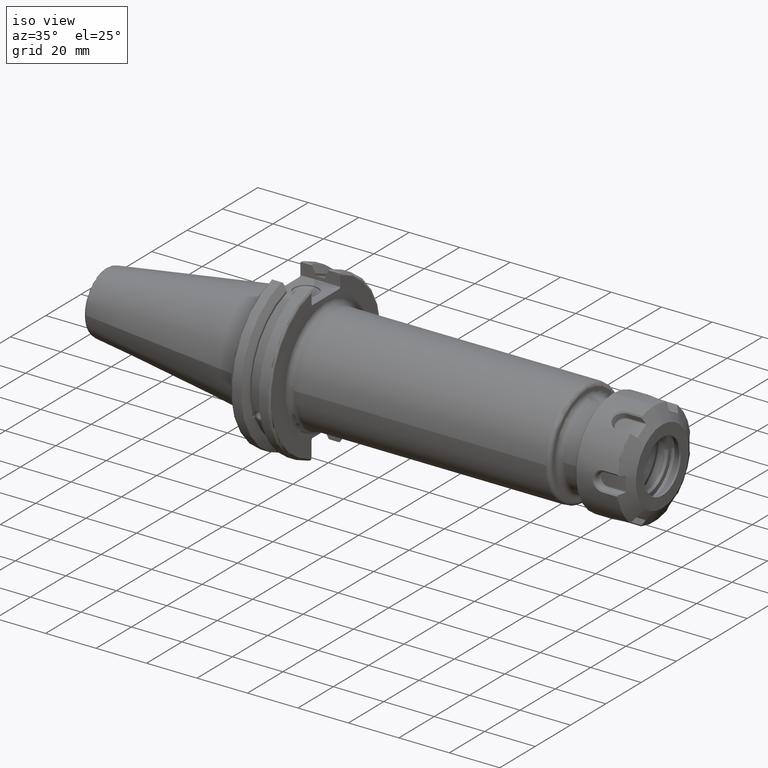
[diagram: clean part render]
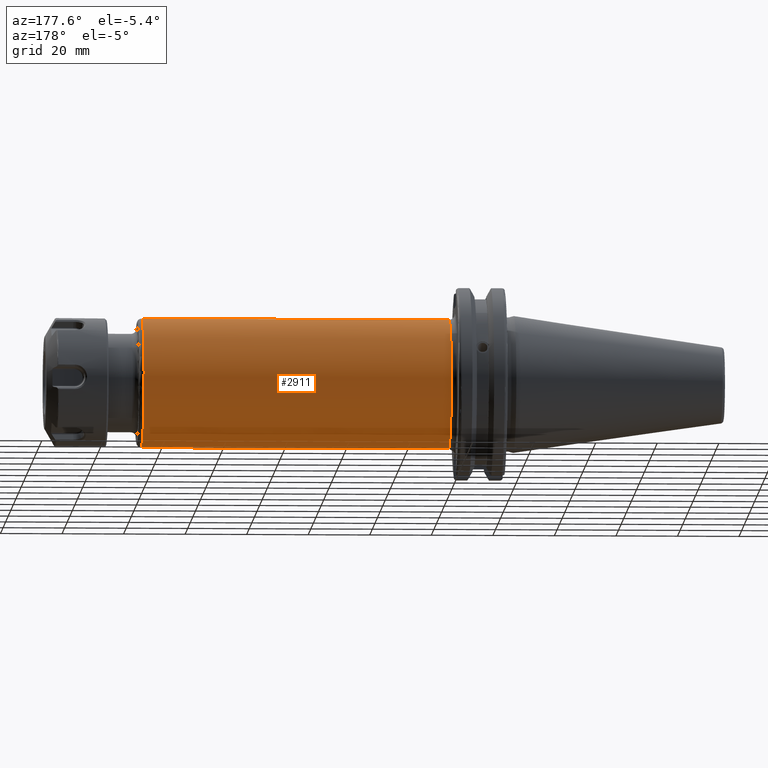
[diagram: tour spotlight — one face highlighted and labeled with its STEP entity id]
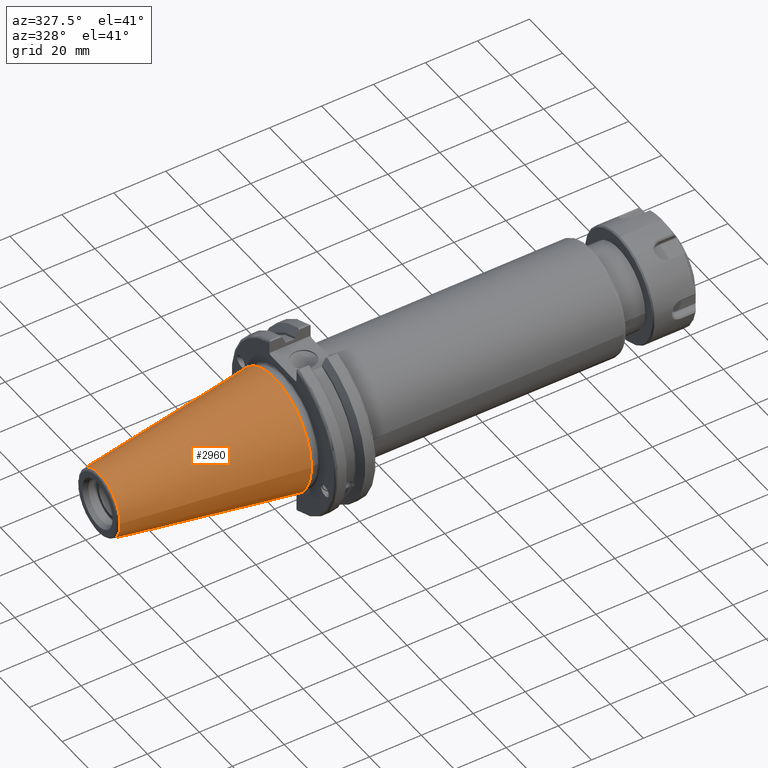
[diagram: tour spotlight — one face highlighted and labeled with its STEP entity id]
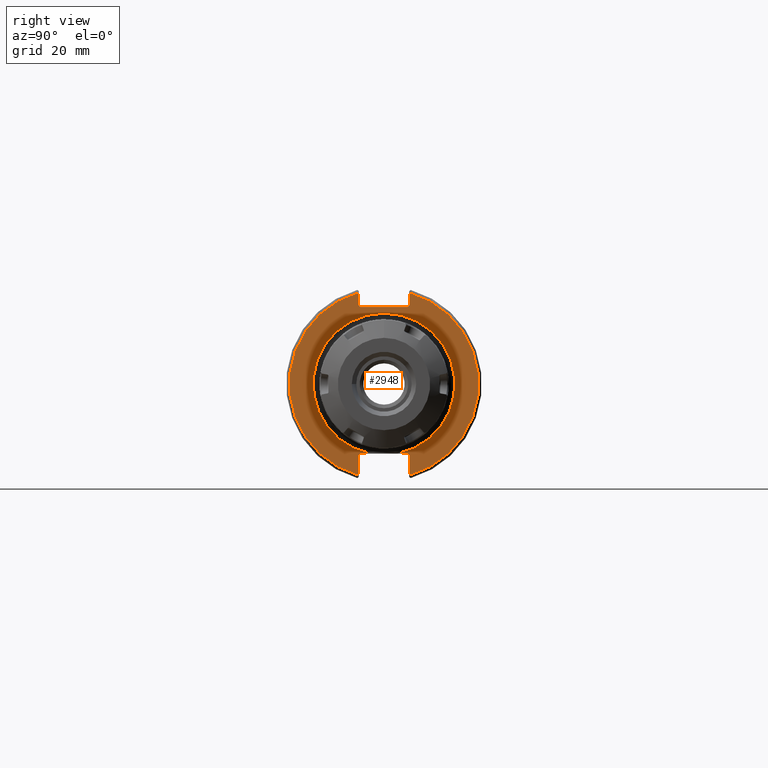
[diagram: tour spotlight — one face highlighted and labeled with its STEP entity id]
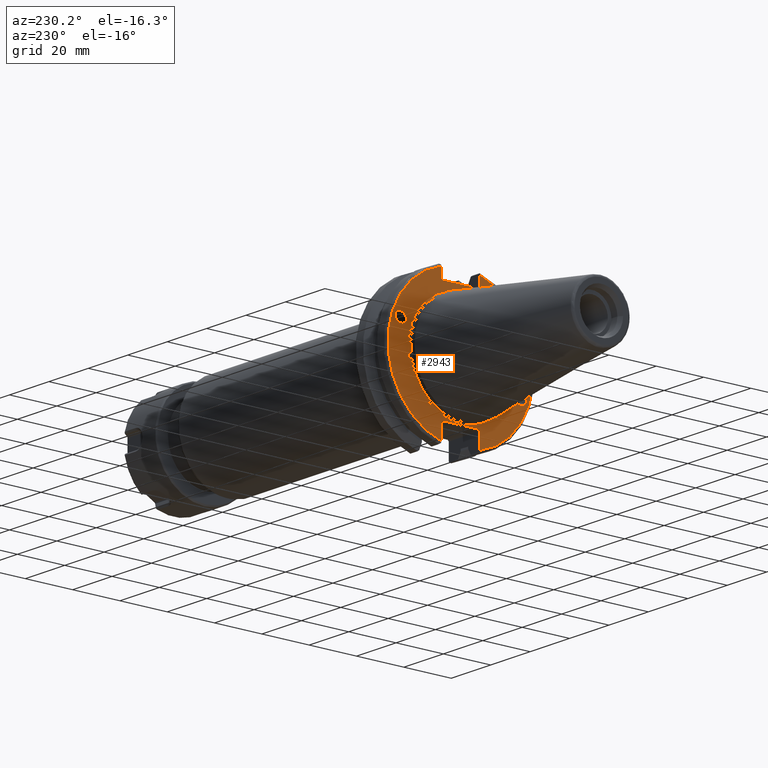
[diagram: tour spotlight — one face highlighted and labeled with its STEP entity id]
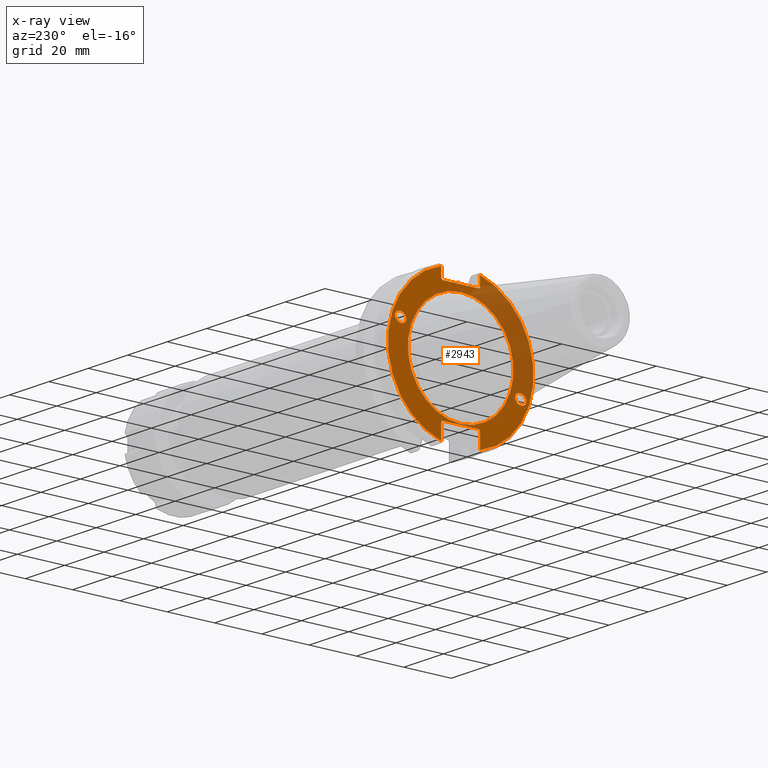
[diagram: x-ray of the same camera — body ghosted, this tour face saturated]
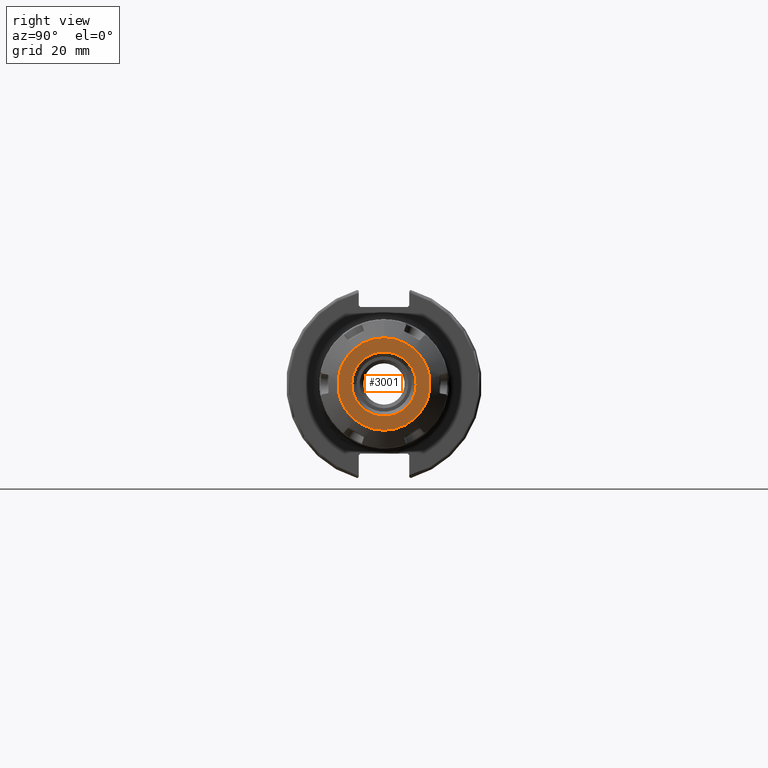
[diagram: tour spotlight — one face highlighted and labeled with its STEP entity id]
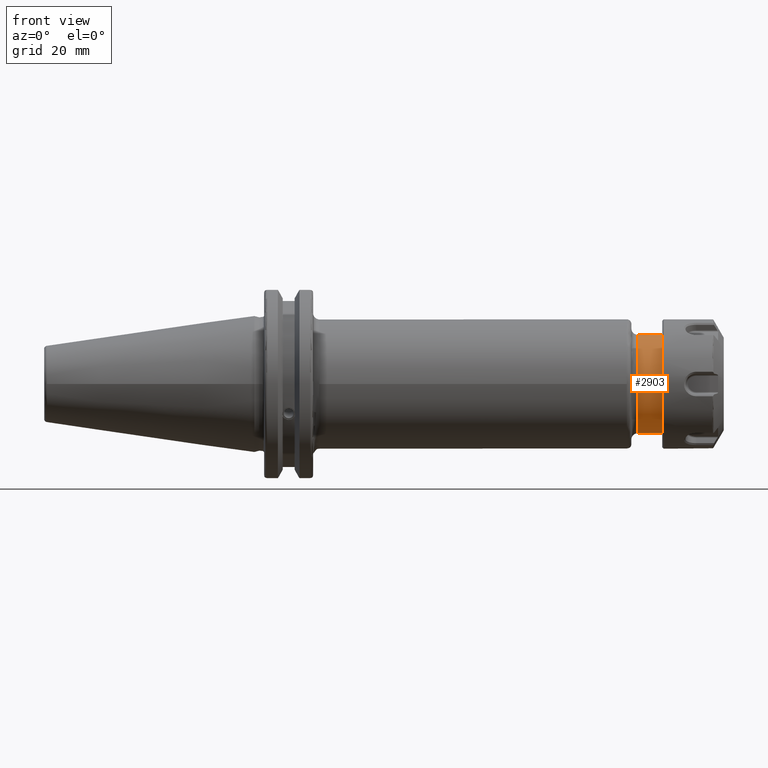
[diagram: tour spotlight — one face highlighted and labeled with its STEP entity id]
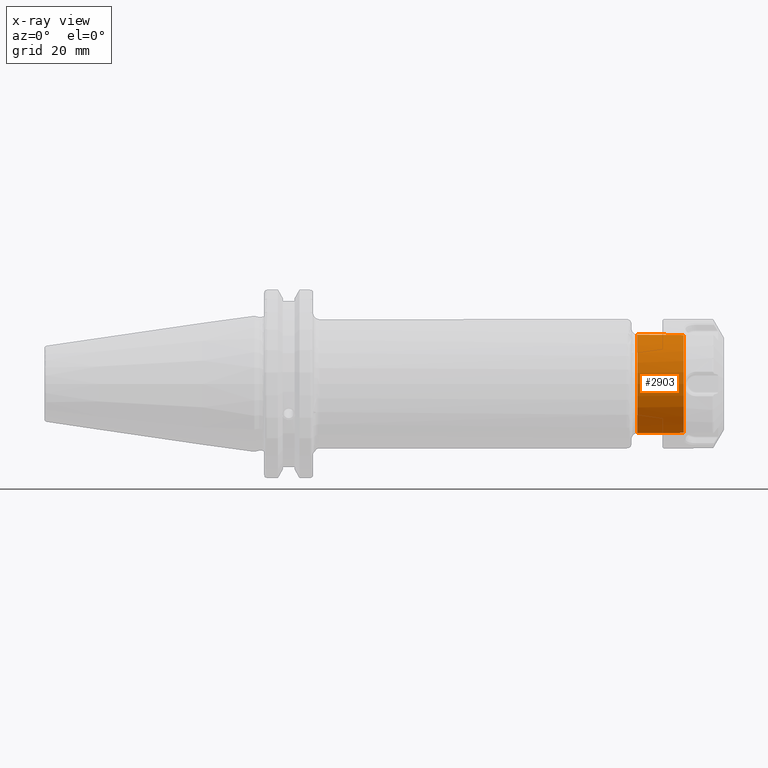
[diagram: x-ray of the same camera — body ghosted, this tour face saturated]
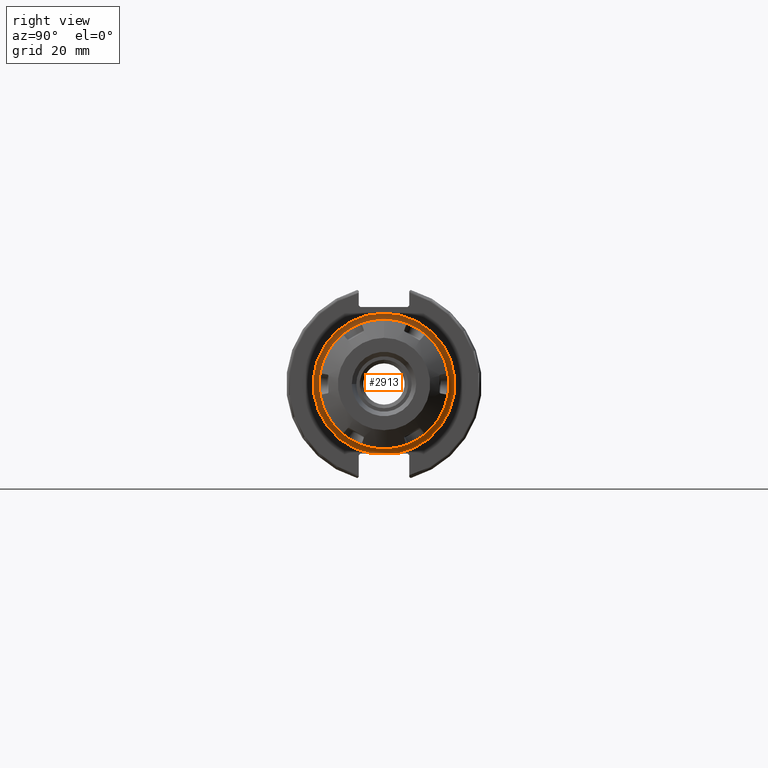
[diagram: tour spotlight — one face highlighted and labeled with its STEP entity id]
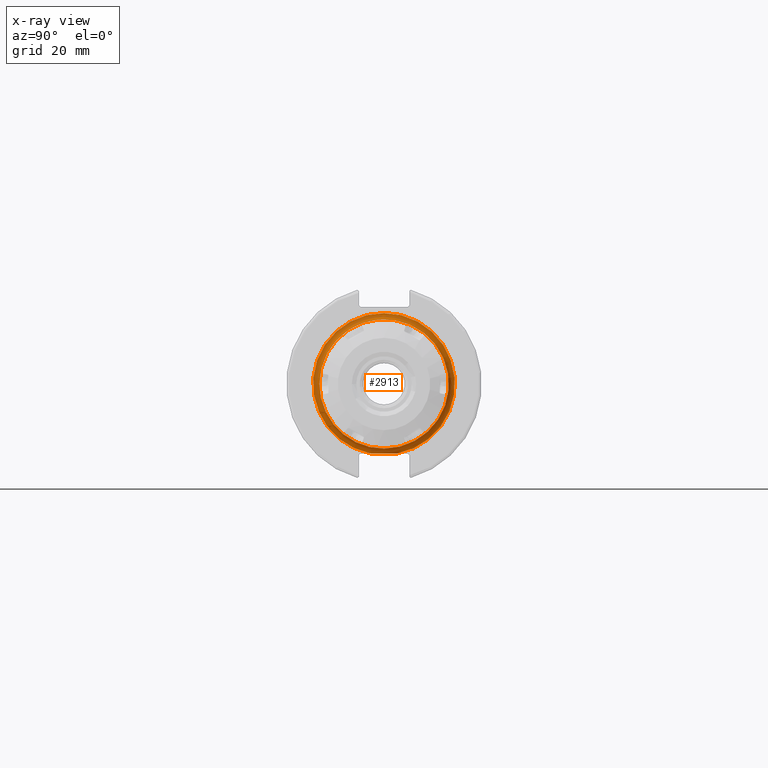
[diagram: x-ray of the same camera — body ghosted, this tour face saturated]
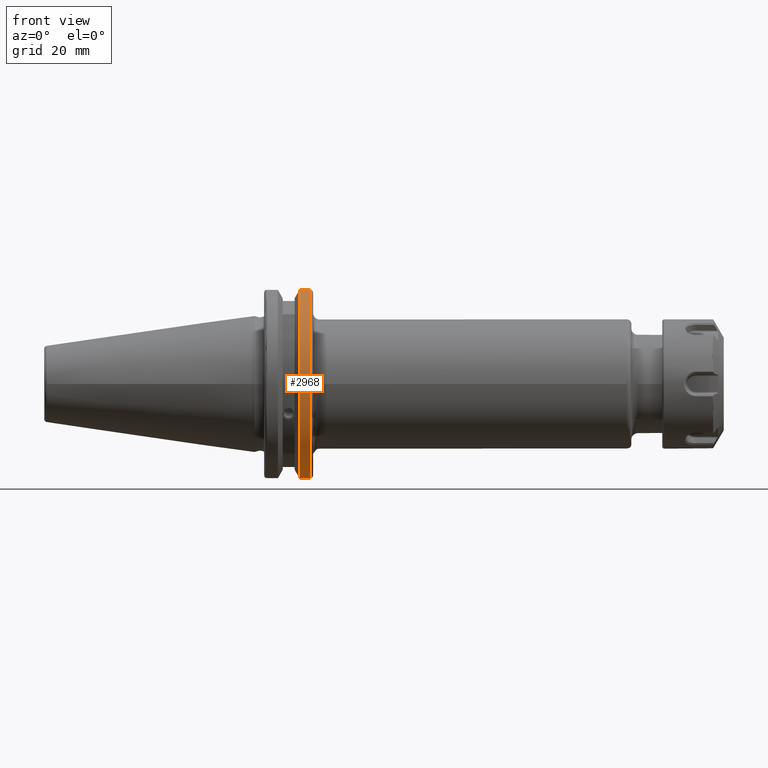
[diagram: tour spotlight — one face highlighted and labeled with its STEP entity id]
A machine part: a face-by-face anatomy tour. The part has 170 B-rep faces; the first image is the clean iso view, then the 8 largest visible faces are spotlighted one at a time (largest first), each with its STEP entity span.

Face 1 — auxiliary view, entity #2911. In plain terms, the highlighted cylindrical surface (bore or boss wall) has radius 21 mm, axis along (1, 0, 0).
Definition (entity closure, byte-faithful):
#261=CYLINDRICAL_SURFACE('',#3176,21.);
#408=FACE_OUTER_BOUND('',#582,.T.);
#582=EDGE_LOOP('',(#2043,#2044,#2045,#2046,#2047,#2048));
#765=LINE('',#4431,#952);
#952=VECTOR('',#3538,21.);
#1150=CIRCLE('',#3172,21.);
#1151=CIRCLE('',#3173,21.);
#1153=CIRCLE('',#3177,21.);
#1154=CIRCLE('',#3178,21.);
#1287=VERTEX_POINT('',#4421);
#1288=VERTEX_POINT('',#4423);
#1290=VERTEX_POINT('',#4430);
#1291=VERTEX_POINT('',#4432);
#1580=EDGE_CURVE('',#1287,#1288,#1150,.T.);
#1581=EDGE_CURVE('',#1288,#1287,#1151,.T.);
#1583=EDGE_CURVE('',#1288,#1290,#765,.T.);
#1584=EDGE_CURVE('',#1291,#1290,#1153,.T.);
#1585=EDGE_CURVE('',#1290,#1291,#1154,.T.);
#2043=ORIENTED_EDGE('',*,*,#1581,.F.);
#2044=ORIENTED_EDGE('',*,*,#1583,.T.);
#2045=ORIENTED_EDGE('',*,*,#1584,.F.);
#2046=ORIENTED_EDGE('',*,*,#1585,.F.);
#2047=ORIENTED_EDGE('',*,*,#1583,.F.);
#2048=ORIENTED_EDGE('',*,*,#1580,.F.);
#2911=ADVANCED_FACE('',(#408),#261,.T.);
#3172=AXIS2_PLACEMENT_3D('',#4424,#3528,#3529);
#3173=AXIS2_PLACEMENT_3D('',#4425,#3530,#3531);
#3176=AXIS2_PLACEMENT_3D('',#4429,#3536,#3537);
#3177=AXIS2_PLACEMENT_3D('',#4433,#3539,#3540);
#3178=AXIS2_PLACEMENT_3D('',#4434,#3541,#3542);
#3528=DIRECTION('center_axis',(1.,0.,0.));
#3529=DIRECTION('ref_axis',(0.,-1.,1.83697019872103E-16));
#3530=DIRECTION('center_axis',(1.,0.,0.));
#3531=DIRECTION('ref_axis',(0.,-1.,1.83697019872103E-16));
#3536=DIRECTION('center_axis',(1.,0.,0.));
#3537=DIRECTION('ref_axis',(0.,1.,0.));
#3538=DIRECTION('',(-1.,0.,0.));
#3539=DIRECTION('center_axis',(-1.,0.,0.));
#3540=DIRECTION('ref_axis',(0.,-1.,-1.22464679914735E-16));
#3541=DIRECTION('center_axis',(-1.,0.,0.));
#3542=DIRECTION('ref_axis',(0.,-1.,-1.22464679914735E-16));
#4421=CARTESIAN_POINT('',(120.9,-2.57175827820944E-15,21.));
#4423=CARTESIAN_POINT('',(120.9,-21.,-2.57175827820944E-15));
#4424=CARTESIAN_POINT('Origin',(120.9,0.,0.));
#4425=CARTESIAN_POINT('Origin',(120.9,0.,0.));
#4429=CARTESIAN_POINT('Origin',(70.725,0.,0.));
#4430=CARTESIAN_POINT('',(21.05,-21.,-2.57175827820944E-15));
#4431=CARTESIAN_POINT('',(70.725,-21.,-2.57175827820944E-15));
#4432=CARTESIAN_POINT('',(21.05,-2.57175827820944E-15,-21.));
#4433=CARTESIAN_POINT('Origin',(21.05,0.,0.));
#4434=CARTESIAN_POINT('Origin',(21.05,0.,0.));

Face 2 — auxiliary view, entity #2960. In plain terms, the highlighted conical surface has half-angle 8.297 deg.
Definition (entity closure, byte-faithful):
#457=FACE_OUTER_BOUND('',#640,.T.);
#640=EDGE_LOOP('',(#2339,#2340,#2341,#2342,#2343));
#836=LINE('',#5029,#1023);
#1023=VECTOR('',#3839,17.2484375);
#1195=CIRCLE('',#3284,12.3966635780937);
#1196=CIRCLE('',#3285,12.3966635780937);
#1200=CIRCLE('',#3291,22.225);
#1414=VERTEX_POINT('',#5016);
#1415=VERTEX_POINT('',#5017);
#1418=VERTEX_POINT('',#5027);
#1756=EDGE_CURVE('',#1414,#1415,#1195,.T.);
#1757=EDGE_CURVE('',#1415,#1414,#1196,.T.);
#1761=EDGE_CURVE('',#1418,#1418,#1200,.T.);
#1762=EDGE_CURVE('',#1418,#1415,#836,.T.);
#2339=ORIENTED_EDGE('',*,*,#1761,.F.);
#2340=ORIENTED_EDGE('',*,*,#1762,.T.);
#2341=ORIENTED_EDGE('',*,*,#1756,.F.);
#2342=ORIENTED_EDGE('',*,*,#1757,.F.);
#2343=ORIENTED_EDGE('',*,*,#1762,.F.);
#2886=CONICAL_SURFACE('',#3290,17.2484375,0.144812498238939);
#2960=ADVANCED_FACE('',(#457),#2886,.T.);
#3284=AXIS2_PLACEMENT_3D('',#5018,#3823,#3824);
#3285=AXIS2_PLACEMENT_3D('',#5019,#3825,#3826);
#3290=AXIS2_PLACEMENT_3D('',#5026,#3835,#3836);
#3291=AXIS2_PLACEMENT_3D('',#5028,#3837,#3838);
#3823=DIRECTION('center_axis',(-1.,0.,0.));
#3824=DIRECTION('ref_axis',(0.,-1.,3.06161699786838E-17));
#3825=DIRECTION('center_axis',(-1.,0.,0.));
#3826=DIRECTION('ref_axis',(0.,-1.,3.06161699786838E-17));
#3835=DIRECTION('center_axis',(1.,0.,0.));
#3836=DIRECTION('ref_axis',(0.,1.,0.));
#3837=DIRECTION('center_axis',(1.,0.,0.));
#3838=DIRECTION('ref_axis',(0.,0.,-1.));
#3839=DIRECTION('',(-0.989532981063282,0.144306893071729,1.76724974695192E-17));
#5016=CARTESIAN_POINT('',(-67.3943068930717,-1.5181534371019E-15,12.3966635780937));
#5017=CARTESIAN_POINT('',(-67.3943068930718,-12.3966635780937,-1.5181534371019E-15));
#5018=CARTESIAN_POINT('Origin',(-67.3943068930717,0.,-1.89769179637738E-15));
#5019=CARTESIAN_POINT('Origin',(-67.3943068930717,0.,-1.89769179637738E-15));
#5026=CARTESIAN_POINT('Origin',(-34.125,0.,0.));
#5027=CARTESIAN_POINT('',(0.,-22.225,-2.72177751110499E-15));
#5028=CARTESIAN_POINT('Origin',(0.,0.,0.));
#5029=CARTESIAN_POINT('',(-34.125,-17.2484375,-2.11232437746682E-15));

Face 3 — right view, entity #2948. In plain terms, the highlighted planar face has unit normal (1, 0, 0).
Definition (entity closure, byte-faithful):
#339=PLANE('',#3268);
#445=FACE_OUTER_BOUND('',#627,.T.);
#627=EDGE_LOOP('',(#2260,#2261,#2262,#2263,#2264,#2265,#2266,#2267,#2268,
#2269,#2270,#2271,#2272,#2273));
#808=LINE('',#4837,#995);
#814=LINE('',#4859,#1001);
#815=LINE('',#4860,#1002);
#816=LINE('',#4862,#1003);
#817=LINE('',#4864,#1004);
#818=LINE('',#4866,#1005);
#819=LINE('',#4868,#1006);
#820=LINE('',#4870,#1007);
#821=LINE('',#4874,#1008);
#822=LINE('',#4876,#1009);
#823=LINE('',#4877,#1010);
#995=VECTOR('',#3763,10.);
#1001=VECTOR('',#3771,10.);
#1002=VECTOR('',#3772,10.);
#1003=VECTOR('',#3773,10.);
#1004=VECTOR('',#3774,10.);
#1005=VECTOR('',#3775,10.);
#1006=VECTOR('',#3776,10.);
#1007=VECTOR('',#3777,10.);
#1008=VECTOR('',#3780,10.);
#1009=VECTOR('',#3781,10.);
#1010=VECTOR('',#3782,10.);
#1157=CIRCLE('',#3183,23.);
#1188=CIRCLE('',#3264,30.75);
#1190=CIRCLE('',#3269,30.75);
#1293=VERTEX_POINT('',#4440);
#1294=VERTEX_POINT('',#4447);
#1375=VERTEX_POINT('',#4797);
#1376=VERTEX_POINT('',#4804);
#1380=VERTEX_POINT('',#4836);
#1386=VERTEX_POINT('',#4858);
#1387=VERTEX_POINT('',#4861);
#1388=VERTEX_POINT('',#4863);
#1389=VERTEX_POINT('',#4865);
#1390=VERTEX_POINT('',#4867);
#1391=VERTEX_POINT('',#4869);
#1392=VERTEX_POINT('',#4871);
#1393=VERTEX_POINT('',#4873);
#1394=VERTEX_POINT('',#4875);
#1589=EDGE_CURVE('',#1293,#1294,#1157,.T.);
#1698=EDGE_CURVE('',#1375,#1376,#1188,.T.);
#1705=EDGE_CURVE('',#1380,#1376,#808,.T.);
#1713=EDGE_CURVE('',#1293,#1386,#814,.T.);
#1714=EDGE_CURVE('',#1380,#1386,#815,.T.);
#1715=EDGE_CURVE('',#1375,#1387,#816,.T.);
#1716=EDGE_CURVE('',#1388,#1387,#817,.T.);
#1717=EDGE_CURVE('',#1388,#1389,#818,.T.);
#1718=EDGE_CURVE('',#1390,#1389,#819,.T.);
#1719=EDGE_CURVE('',#1390,#1391,#820,.T.);
#1720=EDGE_CURVE('',#1392,#1391,#1190,.T.);
#1721=EDGE_CURVE('',#1392,#1393,#821,.T.);
#1722=EDGE_CURVE('',#1394,#1393,#822,.T.);
#1723=EDGE_CURVE('',#1394,#1294,#823,.T.);
#2260=ORIENTED_EDGE('',*,*,#1589,.F.);
#2261=ORIENTED_EDGE('',*,*,#1713,.T.);
#2262=ORIENTED_EDGE('',*,*,#1714,.F.);
#2263=ORIENTED_EDGE('',*,*,#1705,.T.);
#2264=ORIENTED_EDGE('',*,*,#1698,.F.);
#2265=ORIENTED_EDGE('',*,*,#1715,.T.);
#2266=ORIENTED_EDGE('',*,*,#1716,.F.);
#2267=ORIENTED_EDGE('',*,*,#1717,.T.);
#2268=ORIENTED_EDGE('',*,*,#1718,.F.);
#2269=ORIENTED_EDGE('',*,*,#1719,.T.);
#2270=ORIENTED_EDGE('',*,*,#1720,.F.);
#2271=ORIENTED_EDGE('',*,*,#1721,.T.);
#2272=ORIENTED_EDGE('',*,*,#1722,.F.);
#2273=ORIENTED_EDGE('',*,*,#1723,.T.);
#2948=ADVANCED_FACE('',(#445),#339,.T.);
#3183=AXIS2_PLACEMENT_3D('',#4448,#3551,#3552);
#3264=AXIS2_PLACEMENT_3D('',#4805,#3753,#3754);
#3268=AXIS2_PLACEMENT_3D('',#4857,#3769,#3770);
#3269=AXIS2_PLACEMENT_3D('',#4872,#3778,#3779);
#3551=DIRECTION('center_axis',(1.,0.,0.));
#3552=DIRECTION('ref_axis',(0.,-1.,-1.22464679914735E-16));
#3753=DIRECTION('center_axis',(-1.,0.,0.));
#3754=DIRECTION('ref_axis',(0.,1.,-6.12323399573677E-17));
#3763=DIRECTION('',(0.,0.,-1.));
#3769=DIRECTION('center_axis',(1.,0.,0.));
#3770=DIRECTION('ref_axis',(0.,0.,-1.));
#3771=DIRECTION('',(0.,1.,0.));
#3772=DIRECTION('',(0.,-0.707106781186549,0.707106781186546));
#3773=DIRECTION('',(0.,0.,-1.));
#3774=DIRECTION('',(0.,0.707106781186549,0.707106781186546));
#3775=DIRECTION('',(0.,-1.,0.));
#3776=DIRECTION('',(0.,0.70710678118655,-0.707106781186545));
#3777=DIRECTION('',(0.,0.,1.));
#3778=DIRECTION('center_axis',(-1.,0.,0.));
#3779=DIRECTION('ref_axis',(0.,-1.,1.60812264967664E-16));
#3780=DIRECTION('',(0.,0.,1.));
#3781=DIRECTION('',(0.,-0.707106781186549,-0.707106781186546));
#3782=DIRECTION('',(0.,1.,0.));
#4440=CARTESIAN_POINT('',(19.05,4.27083130081252,-22.6));
#4447=CARTESIAN_POINT('',(19.05,-4.27083130081252,-22.6));
#4448=CARTESIAN_POINT('Origin',(19.05,0.,0.));
#4797=CARTESIAN_POINT('',(19.05,8.19,29.6392712461019));
#4804=CARTESIAN_POINT('',(19.05,8.19,-29.6392712461019));
#4805=CARTESIAN_POINT('Origin',(19.05,0.,0.));
#4836=CARTESIAN_POINT('',(19.05,8.19,-23.1));
#4837=CARTESIAN_POINT('',(19.05,8.19,-11.3));
#4857=CARTESIAN_POINT('Origin',(19.05,0.,0.));
#4858=CARTESIAN_POINT('',(19.05,7.69,-22.6));
#4859=CARTESIAN_POINT('',(19.05,-2.77555756156289E-16,-22.6));
#4860=CARTESIAN_POINT('',(19.05,0.242499999999989,-15.1525));
#4861=CARTESIAN_POINT('',(19.05,8.19,25.5));
#4862=CARTESIAN_POINT('',(19.05,8.19,12.5));
#4863=CARTESIAN_POINT('',(19.05,7.69,25.));
#4864=CARTESIAN_POINT('',(19.05,-0.35750000000001,16.9525));
#4865=CARTESIAN_POINT('',(19.05,-7.69,25.));
#4866=CARTESIAN_POINT('',(19.05,0.,25.));
#4867=CARTESIAN_POINT('',(19.05,-8.19,25.5));
#4868=CARTESIAN_POINT('',(19.05,0.357500000000014,16.9525));
#4869=CARTESIAN_POINT('',(19.05,-8.19,29.6392712461019));
#4870=CARTESIAN_POINT('',(19.05,-8.19,12.5));
#4871=CARTESIAN_POINT('',(19.05,-8.19,-29.6392712461019));
#4872=CARTESIAN_POINT('Origin',(19.05,0.,0.));
#4873=CARTESIAN_POINT('',(19.05,-8.19,-23.1));
#4874=CARTESIAN_POINT('',(19.05,-8.19,-11.3));
#4875=CARTESIAN_POINT('',(19.05,-7.69,-22.6));
#4876=CARTESIAN_POINT('',(19.05,-0.242499999999991,-15.1525));
#4877=CARTESIAN_POINT('',(19.05,-2.77555756156289E-16,-22.6));

Face 4 — auxiliary view, entity #2943. An x-ray twin of the same camera follows (body ghosted, this face saturated) — the face is partly hidden behind the body. In plain terms, the highlighted planar face has unit normal (-1, 0, 0).
Definition (entity closure, byte-faithful):
#139=ELLIPSE('',#3209,2.44154917752292,2.00000000000001);
#148=ELLIPSE('',#3252,2.44154917752292,2.00000000000001);
#313=FACE_BOUND('',#620,.T.);
#314=FACE_BOUND('',#621,.T.);
#315=FACE_BOUND('',#622,.T.);
#336=PLANE('',#3258);
#440=FACE_OUTER_BOUND('',#619,.T.);
#619=EDGE_LOOP('',(#2218,#2219,#2220,#2221,#2222,#2223,#2224,#2225,#2226,
#2227,#2228,#2229));
#620=EDGE_LOOP('',(#2230));
#621=EDGE_LOOP('',(#2231));
#622=EDGE_LOOP('',(#2232));
#795=LINE('',#4771,#982);
#796=LINE('',#4773,#983);
#797=LINE('',#4775,#984);
#798=LINE('',#4777,#985);
#799=LINE('',#4779,#986);
#800=LINE('',#4783,#987);
#801=LINE('',#4785,#988);
#802=LINE('',#4787,#989);
#803=LINE('',#4789,#990);
#804=LINE('',#4790,#991);
#982=VECTOR('',#3734,10.);
#983=VECTOR('',#3735,10.);
#984=VECTOR('',#3736,10.);
#985=VECTOR('',#3737,10.);
#986=VECTOR('',#3738,10.);
#987=VECTOR('',#3741,10.);
#988=VECTOR('',#3742,10.);
#989=VECTOR('',#3743,10.);
#990=VECTOR('',#3744,10.);
#991=VECTOR('',#3745,10.);
#1183=CIRCLE('',#3256,22.3);
#1185=CIRCLE('',#3259,30.75);
#1186=CIRCLE('',#3260,30.75);
#1317=VERTEX_POINT('',#4572);
#1357=VERTEX_POINT('',#4755);
#1360=VERTEX_POINT('',#4762);
#1361=VERTEX_POINT('',#4767);
#1362=VERTEX_POINT('',#4768);
#1363=VERTEX_POINT('',#4770);
#1364=VERTEX_POINT('',#4772);
#1365=VERTEX_POINT('',#4774);
#1366=VERTEX_POINT('',#4776);
#1367=VERTEX_POINT('',#4778);
#1368=VERTEX_POINT('',#4780);
#1369=VERTEX_POINT('',#4782);
#1370=VERTEX_POINT('',#4784);
#1371=VERTEX_POINT('',#4786);
#1372=VERTEX_POINT('',#4788);
#1622=EDGE_CURVE('',#1317,#1317,#139,.T.);
#1678=EDGE_CURVE('',#1357,#1357,#148,.T.);
#1681=EDGE_CURVE('',#1360,#1360,#1183,.T.);
#1683=EDGE_CURVE('',#1361,#1362,#1185,.T.);
#1684=EDGE_CURVE('',#1361,#1363,#795,.T.);
#1685=EDGE_CURVE('',#1364,#1363,#796,.T.);
#1686=EDGE_CURVE('',#1364,#1365,#797,.T.);
#1687=EDGE_CURVE('',#1366,#1365,#798,.T.);
#1688=EDGE_CURVE('',#1366,#1367,#799,.T.);
#1689=EDGE_CURVE('',#1368,#1367,#1186,.T.);
#1690=EDGE_CURVE('',#1368,#1369,#800,.T.);
#1691=EDGE_CURVE('',#1370,#1369,#801,.T.);
#1692=EDGE_CURVE('',#1370,#1371,#802,.T.);
#1693=EDGE_CURVE('',#1372,#1371,#803,.T.);
#1694=EDGE_CURVE('',#1372,#1362,#804,.T.);
#2218=ORIENTED_EDGE('',*,*,#1683,.F.);
#2219=ORIENTED_EDGE('',*,*,#1684,.T.);
#2220=ORIENTED_EDGE('',*,*,#1685,.F.);
#2221=ORIENTED_EDGE('',*,*,#1686,.T.);
#2222=ORIENTED_EDGE('',*,*,#1687,.F.);
#2223=ORIENTED_EDGE('',*,*,#1688,.T.);
#2224=ORIENTED_EDGE('',*,*,#1689,.F.);
#2225=ORIENTED_EDGE('',*,*,#1690,.T.);
#2226=ORIENTED_EDGE('',*,*,#1691,.F.);
#2227=ORIENTED_EDGE('',*,*,#1692,.T.);
#2228=ORIENTED_EDGE('',*,*,#1693,.F.);
#2229=ORIENTED_EDGE('',*,*,#1694,.T.);
#2230=ORIENTED_EDGE('',*,*,#1622,.T.);
#2231=ORIENTED_EDGE('',*,*,#1678,.T.);
#2232=ORIENTED_EDGE('',*,*,#1681,.F.);
#2943=ADVANCED_FACE('',(#440,#313,#314,#315),#336,.T.);
#3209=AXIS2_PLACEMENT_3D('',#4574,#3615,#3616);
#3252=AXIS2_PLACEMENT_3D('',#4757,#3718,#3719);
#3256=AXIS2_PLACEMENT_3D('',#4764,#3726,#3727);
#3258=AXIS2_PLACEMENT_3D('',#4766,#3730,#3731);
#3259=AXIS2_PLACEMENT_3D('',#4769,#3732,#3733);
#3260=AXIS2_PLACEMENT_3D('',#4781,#3739,#3740);
#3615=DIRECTION('center_axis',(1.,0.,0.));
#3616=DIRECTION('ref_axis',(5.68400912649E-17,-0.939692620785909,-0.342020143325667));
#3718=DIRECTION('center_axis',(1.,0.,0.));
#3719=DIRECTION('ref_axis',(5.68400912649E-17,0.939692620785909,0.342020143325667));
#3726=DIRECTION('center_axis',(-1.,0.,0.));
#3727=DIRECTION('ref_axis',(0.,-1.,1.83697019872103E-16));
#3730=DIRECTION('center_axis',(-1.,0.,0.));
#3731=DIRECTION('ref_axis',(0.,0.,1.));
#3732=DIRECTION('center_axis',(1.,0.,0.));
#3733=DIRECTION('ref_axis',(0.,-1.,1.60812264967664E-16));
#3734=DIRECTION('',(0.,0.,-1.));
#3735=DIRECTION('',(0.,-0.70710678118655,0.707106781186545));
#3736=DIRECTION('',(0.,1.,0.));
#3737=DIRECTION('',(0.,-0.707106781186549,-0.707106781186546));
#3738=DIRECTION('',(0.,0.,1.));
#3739=DIRECTION('center_axis',(1.,0.,0.));
#3740=DIRECTION('ref_axis',(0.,1.,1.60812264967664E-16));
#3741=DIRECTION('',(0.,0.,1.));
#3742=DIRECTION('',(0.,0.707106781186549,-0.707106781186546));
#3743=DIRECTION('',(0.,-1.,0.));
#3744=DIRECTION('',(0.,0.707106781186549,0.707106781186546));
#3745=DIRECTION('',(0.,0.,-1.));
#4572=CARTESIAN_POINT('',(3.175,-23.0773950158153,-8.39948487016));
#4574=CARTESIAN_POINT('Origin',(3.175,-25.3717007612195,-9.23454386979305));
#4755=CARTESIAN_POINT('',(3.175,23.0773950158153,8.39948487016));
#4757=CARTESIAN_POINT('Origin',(3.175,25.3717007612195,9.23454386979306));
#4762=CARTESIAN_POINT('',(3.175,-2.7309623620986E-15,22.3));
#4764=CARTESIAN_POINT('Origin',(3.175,0.,0.));
#4766=CARTESIAN_POINT('Origin',(3.175,31.75,0.));
#4767=CARTESIAN_POINT('',(3.175,-8.18999999999999,29.6392712461019));
#4768=CARTESIAN_POINT('',(3.175,-8.19,-29.6392712461019));
#4769=CARTESIAN_POINT('Origin',(3.175,0.,0.));
#4770=CARTESIAN_POINT('',(3.175,-8.18999999999999,25.5));
#4771=CARTESIAN_POINT('',(3.175,-8.18999999999999,12.5));
#4772=CARTESIAN_POINT('',(3.175,-7.68999999999999,25.));
#4773=CARTESIAN_POINT('',(3.175,8.29500000000007,9.01500000000004));
#4774=CARTESIAN_POINT('',(3.175,7.69,25.));
#4775=CARTESIAN_POINT('',(3.175,15.875,25.));
#4776=CARTESIAN_POINT('',(3.175,8.19,25.5));
#4777=CARTESIAN_POINT('',(3.175,7.58000000000002,24.89));
#4778=CARTESIAN_POINT('',(3.175,8.19,29.6392712461019));
#4779=CARTESIAN_POINT('',(3.175,8.19,12.5));
#4780=CARTESIAN_POINT('',(3.175,8.18999999999999,-29.6392712461019));
#4781=CARTESIAN_POINT('Origin',(3.175,0.,0.));
#4782=CARTESIAN_POINT('',(3.175,8.18999999999999,-23.1));
#4783=CARTESIAN_POINT('',(3.175,8.18999999999999,-11.3));
#4784=CARTESIAN_POINT('',(3.175,7.69,-22.6));
#4785=CARTESIAN_POINT('',(3.175,8.18000000000002,-23.09));
#4786=CARTESIAN_POINT('',(3.175,-7.69,-22.6));
#4787=CARTESIAN_POINT('',(3.175,15.875,-22.6));
#4788=CARTESIAN_POINT('',(3.175,-8.19,-23.1));
#4789=CARTESIAN_POINT('',(3.175,7.69500000000004,-7.21500000000002));
#4790=CARTESIAN_POINT('',(3.175,-8.19,-11.3));

Face 5 — right view, entity #3001. In plain terms, the highlighted planar face has unit normal (1, 0, 0).
Definition (entity closure, byte-faithful):
#324=FACE_BOUND('',#689,.T.);
#367=PLANE('',#3360);
#498=FACE_OUTER_BOUND('',#688,.T.);
#688=EDGE_LOOP('',(#2515));
#689=EDGE_LOOP('',(#2516));
#1227=CIRCLE('',#3359,10.45);
#1228=CIRCLE('',#3361,15.);
#1440=VERTEX_POINT('',#5145);
#1441=VERTEX_POINT('',#5149);
#1812=EDGE_CURVE('',#1440,#1440,#1227,.T.);
#1814=EDGE_CURVE('',#1441,#1441,#1228,.T.);
#2515=ORIENTED_EDGE('',*,*,#1814,.T.);
#2516=ORIENTED_EDGE('',*,*,#1812,.T.);
#3001=ADVANCED_FACE('',(#498,#324),#367,.T.);
#3359=AXIS2_PLACEMENT_3D('',#5146,#3995,#3996);
#3360=AXIS2_PLACEMENT_3D('',#5148,#3998,#3999);
#3361=AXIS2_PLACEMENT_3D('',#5150,#4000,#4001);
#3995=DIRECTION('center_axis',(-1.,0.,0.));
#3996=DIRECTION('ref_axis',(0.,-1.,0.));
#3998=DIRECTION('center_axis',(1.,0.,0.));
#3999=DIRECTION('ref_axis',(0.,0.,-1.));
#4000=DIRECTION('center_axis',(1.,0.,0.));
#4001=DIRECTION('ref_axis',(0.,0.,1.));
#5145=CARTESIAN_POINT('',(10.,10.45,-1.27975590510898E-15));
#5146=CARTESIAN_POINT('Origin',(10.,0.,0.));
#5148=CARTESIAN_POINT('Origin',(10.,0.,0.));
#5149=CARTESIAN_POINT('',(10.,0.,15.));
#5150=CARTESIAN_POINT('Origin',(10.,0.,0.));

Face 6 — front view, entity #2903. An x-ray twin of the same camera follows (body ghosted, this face saturated) — the face is partly hidden behind the body. In plain terms, the highlighted cylindrical surface (bore or boss wall) has radius 16 mm, axis along (1, 0, 0).
Definition (entity closure, byte-faithful):
#258=CYLINDRICAL_SURFACE('',#3152,16.);
#400=FACE_OUTER_BOUND('',#571,.T.);
#571=EDGE_LOOP('',(#2002,#2003,#2004,#2005,#2006,#2007));
#760=LINE('',#4312,#947);
#947=VECTOR('',#3485,16.);
#1134=CIRCLE('',#3148,16.);
#1135=CIRCLE('',#3149,16.);
#1137=CIRCLE('',#3153,16.);
#1138=CIRCLE('',#3154,16.);
#1269=VERTEX_POINT('',#4302);
#1270=VERTEX_POINT('',#4304);
#1272=VERTEX_POINT('',#4311);
#1273=VERTEX_POINT('',#4313);
#1555=EDGE_CURVE('',#1269,#1270,#1134,.T.);
#1556=EDGE_CURVE('',#1270,#1269,#1135,.T.);
#1558=EDGE_CURVE('',#1270,#1272,#760,.T.);
#1559=EDGE_CURVE('',#1273,#1272,#1137,.T.);
#1560=EDGE_CURVE('',#1272,#1273,#1138,.T.);
#2002=ORIENTED_EDGE('',*,*,#1555,.F.);
#2003=ORIENTED_EDGE('',*,*,#1556,.F.);
#2004=ORIENTED_EDGE('',*,*,#1558,.T.);
#2005=ORIENTED_EDGE('',*,*,#1559,.F.);
#2006=ORIENTED_EDGE('',*,*,#1560,.F.);
#2007=ORIENTED_EDGE('',*,*,#1558,.F.);
#2903=ADVANCED_FACE('',(#400),#258,.T.);
#3148=AXIS2_PLACEMENT_3D('',#4305,#3475,#3476);
#3149=AXIS2_PLACEMENT_3D('',#4306,#3477,#3478);
#3152=AXIS2_PLACEMENT_3D('',#4310,#3483,#3484);
#3153=AXIS2_PLACEMENT_3D('',#4314,#3486,#3487);
#3154=AXIS2_PLACEMENT_3D('',#4315,#3488,#3489);
#3475=DIRECTION('center_axis',(1.,0.,0.));
#3476=DIRECTION('ref_axis',(0.,-1.,0.));
#3477=DIRECTION('center_axis',(1.,0.,0.));
#3478=DIRECTION('ref_axis',(0.,-1.,0.));
#3483=DIRECTION('center_axis',(1.,0.,0.));
#3484=DIRECTION('ref_axis',(0.,1.,0.));
#3485=DIRECTION('',(-1.,0.,0.));
#3486=DIRECTION('center_axis',(-1.,0.,0.));
#3487=DIRECTION('ref_axis',(0.,-1.,1.83697019872103E-16));
#3488=DIRECTION('center_axis',(-1.,0.,0.));
#3489=DIRECTION('ref_axis',(0.,-1.,1.83697019872103E-16));
#4302=CARTESIAN_POINT('',(139.4,16.,1.95943487863577E-15));
#4304=CARTESIAN_POINT('',(139.4,-16.,-1.95943487863577E-15));
#4305=CARTESIAN_POINT('Origin',(139.4,0.,0.));
#4306=CARTESIAN_POINT('Origin',(139.4,0.,0.));
#4310=CARTESIAN_POINT('Origin',(131.4,0.,0.));
#4311=CARTESIAN_POINT('',(124.4,-16.,-1.95943487863577E-15));
#4312=CARTESIAN_POINT('',(131.4,-16.,-1.95943487863577E-15));
#4313=CARTESIAN_POINT('',(124.4,-1.95943487863577E-15,16.));
#4314=CARTESIAN_POINT('Origin',(124.4,0.,0.));
#4315=CARTESIAN_POINT('Origin',(124.4,0.,0.));

Face 7 — right view, entity #2913. An x-ray twin of the same camera follows (body ghosted, this face saturated) — the face is partly hidden behind the body. In plain terms, the highlighted toroidal blend (fillet) surface has major radius 23 mm and minor (blend) radius 2 mm.
Definition (entity closure, byte-faithful):
#152=TOROIDAL_SURFACE('',#3181,23.,2.);
#176=B_SPLINE_CURVE_WITH_KNOTS('',3,(#4441,#4442,#4443,#4444,#4445,#4446),
 .UNSPECIFIED.,.F.,.F.,(4,2,4),(2.15101622336275,2.4328114240073,2.55143322424697),
 .UNSPECIFIED.);
#177=B_SPLINE_CURVE_WITH_KNOTS('',3,(#4449,#4450,#4451,#4452,#4453,#4454),
 .UNSPECIFIED.,.F.,.F.,(4,2,4),(1.75059922247852,1.86922102271819,2.15101622336275),
 .UNSPECIFIED.);
#410=FACE_OUTER_BOUND('',#584,.T.);
#584=EDGE_LOOP('',(#2054,#2055,#2056,#2057,#2058,#2059,#2060));
#1153=CIRCLE('',#3177,21.);
#1154=CIRCLE('',#3178,21.);
#1156=CIRCLE('',#3182,2.);
#1157=CIRCLE('',#3183,23.);
#1290=VERTEX_POINT('',#4430);
#1291=VERTEX_POINT('',#4432);
#1292=VERTEX_POINT('',#4438);
#1293=VERTEX_POINT('',#4440);
#1294=VERTEX_POINT('',#4447);
#1584=EDGE_CURVE('',#1291,#1290,#1153,.T.);
#1585=EDGE_CURVE('',#1290,#1291,#1154,.T.);
#1587=EDGE_CURVE('',#1291,#1292,#1156,.T.);
#1588=EDGE_CURVE('',#1293,#1292,#176,.F.);
#1589=EDGE_CURVE('',#1293,#1294,#1157,.T.);
#1590=EDGE_CURVE('',#1292,#1294,#177,.F.);
#2054=ORIENTED_EDGE('',*,*,#1585,.T.);
#2055=ORIENTED_EDGE('',*,*,#1587,.T.);
#2056=ORIENTED_EDGE('',*,*,#1588,.F.);
#2057=ORIENTED_EDGE('',*,*,#1589,.T.);
#2058=ORIENTED_EDGE('',*,*,#1590,.F.);
#2059=ORIENTED_EDGE('',*,*,#1587,.F.);
#2060=ORIENTED_EDGE('',*,*,#1584,.T.);
#2913=ADVANCED_FACE('',(#410),#152,.F.);
#3177=AXIS2_PLACEMENT_3D('',#4433,#3539,#3540);
#3178=AXIS2_PLACEMENT_3D('',#4434,#3541,#3542);
#3181=AXIS2_PLACEMENT_3D('',#4437,#3547,#3548);
#3182=AXIS2_PLACEMENT_3D('',#4439,#3549,#3550);
#3183=AXIS2_PLACEMENT_3D('',#4448,#3551,#3552);
#3539=DIRECTION('center_axis',(-1.,0.,0.));
#3540=DIRECTION('ref_axis',(0.,-1.,-1.22464679914735E-16));
#3541=DIRECTION('center_axis',(-1.,0.,0.));
#3542=DIRECTION('ref_axis',(0.,-1.,-1.22464679914735E-16));
#3547=DIRECTION('center_axis',(-1.,0.,0.));
#3548=DIRECTION('ref_axis',(0.,0.,1.));
#3549=DIRECTION('center_axis',(0.,-1.,1.22464679914735E-16));
#3550=DIRECTION('ref_axis',(0.,-1.22464679914735E-16,-1.));
#3551=DIRECTION('center_axis',(1.,0.,0.));
#3552=DIRECTION('ref_axis',(0.,-1.,-1.22464679914735E-16));
#4430=CARTESIAN_POINT('',(21.05,-21.,-2.57175827820944E-15));
#4432=CARTESIAN_POINT('',(21.05,-2.57175827820944E-15,-21.));
#4433=CARTESIAN_POINT('Origin',(21.05,0.,0.));
#4434=CARTESIAN_POINT('Origin',(21.05,0.,0.));
#4437=CARTESIAN_POINT('Origin',(21.05,0.,0.));
#4438=CARTESIAN_POINT('',(19.0904082057735,-1.10629512688022E-15,-22.6));
#4439=CARTESIAN_POINT('Origin',(21.05,-2.81668763803891E-15,-23.));
#4440=CARTESIAN_POINT('',(19.05,4.27083130081252,-22.6));
#4441=CARTESIAN_POINT('Ctrl Pts',(19.0904082057735,5.55111512312578E-16,
-22.6));
#4442=CARTESIAN_POINT('Ctrl Pts',(19.0904082057735,0.939317335481846,-22.6));
#4443=CARTESIAN_POINT('Ctrl Pts',(19.0726359851923,2.06635802235898,-22.6));
#4444=CARTESIAN_POINT('Ctrl Pts',(19.0548623239019,3.40096301312469,-22.6));
#4445=CARTESIAN_POINT('Ctrl Pts',(19.05,3.87542530001362,-22.6));
#4446=CARTESIAN_POINT('Ctrl Pts',(19.05,4.27083130081252,-22.6));
#4447=CARTESIAN_POINT('',(19.05,-4.27083130081252,-22.6));
#4448=CARTESIAN_POINT('Origin',(19.05,0.,0.));
#4449=CARTESIAN_POINT('Ctrl Pts',(19.05,-4.27083130081252,-22.6));
#4450=CARTESIAN_POINT('Ctrl Pts',(19.05,-3.87542530001362,-22.6));
#4451=CARTESIAN_POINT('Ctrl Pts',(19.0548623239019,-3.40096301312469,-22.6));
#4452=CARTESIAN_POINT('Ctrl Pts',(19.0726359851923,-2.06635802235898,-22.6));
#4453=CARTESIAN_POINT('Ctrl Pts',(19.0904082057735,-0.939317335481846,-22.6));
#4454=CARTESIAN_POINT('Ctrl Pts',(19.0904082057735,-5.55111512312578E-16,
-22.6));

Face 8 — front view, entity #2968. In plain terms, the highlighted cylindrical surface (partial cylindrical patch) has radius 31.75 mm, axis along (1, 0, 0).
Definition (entity closure, byte-faithful):
#279=CYLINDRICAL_SURFACE('',#3299,31.75);
#465=FACE_OUTER_BOUND('',#648,.T.);
#648=EDGE_LOOP('',(#2383,#2384,#2385,#2386));
#844=LINE('',#5048,#1031);
#845=LINE('',#5050,#1032);
#1031=VECTOR('',#3861,10.);
#1032=VECTOR('',#3864,10.);
#1165=CIRCLE('',#3212,31.75);
#1191=CIRCLE('',#3271,31.75);
#1320=VERTEX_POINT('',#4582);
#1321=VERTEX_POINT('',#4586);
#1397=VERTEX_POINT('',#4893);
#1398=VERTEX_POINT('',#4902);
#1626=EDGE_CURVE('',#1321,#1320,#1165,.T.);
#1727=EDGE_CURVE('',#1397,#1398,#1191,.T.);
#1771=EDGE_CURVE('',#1398,#1320,#844,.T.);
#1772=EDGE_CURVE('',#1321,#1397,#845,.T.);
#2383=ORIENTED_EDGE('',*,*,#1727,.F.);
#2384=ORIENTED_EDGE('',*,*,#1772,.F.);
#2385=ORIENTED_EDGE('',*,*,#1626,.T.);
#2386=ORIENTED_EDGE('',*,*,#1771,.F.);
#2968=ADVANCED_FACE('',(#465),#279,.T.);
#3212=AXIS2_PLACEMENT_3D('',#4587,#3621,#3622);
#3271=AXIS2_PLACEMENT_3D('',#4903,#3785,#3786);
#3299=AXIS2_PLACEMENT_3D('',#5049,#3862,#3863);
#3621=DIRECTION('center_axis',(1.,0.,0.));
#3622=DIRECTION('ref_axis',(0.,0.,-1.));
#3785=DIRECTION('center_axis',(1.,0.,0.));
#3786=DIRECTION('ref_axis',(0.,-1.,1.60812264967664E-16));
#3861=DIRECTION('',(-1.,0.,0.));
#3862=DIRECTION('center_axis',(1.,0.,0.));
#3863=DIRECTION('ref_axis',(0.,-1.,1.22464679914735E-16));
#3864=DIRECTION('',(1.,0.,0.));
#4582=CARTESIAN_POINT('',(14.6531667690756,-8.67204822802685,-30.5427254764662));
#4586=CARTESIAN_POINT('',(14.6531667690756,-8.67204822802685,30.5427254764662));
#4587=CARTESIAN_POINT('Origin',(14.6531667690756,0.,0.));
#4893=CARTESIAN_POINT('',(18.05,-8.67204822802685,30.5427254764662));
#4902=CARTESIAN_POINT('',(18.05,-8.67204822802685,-30.5427254764662));
#4903=CARTESIAN_POINT('Origin',(18.05,0.,0.));
#5048=CARTESIAN_POINT('',(16.8515833845378,-8.67204822802685,-30.5427254764662));
#5049=CARTESIAN_POINT('Origin',(16.8515833845378,0.,0.));
#5050=CARTESIAN_POINT('',(16.8515833845378,-8.67204822802685,30.5427254764662));